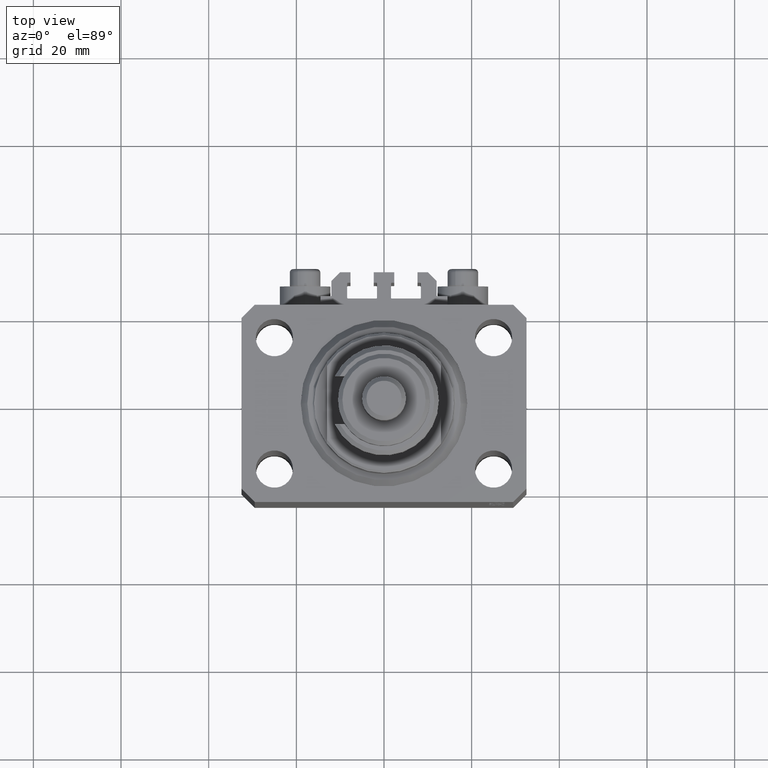
[diagram: clean part render]
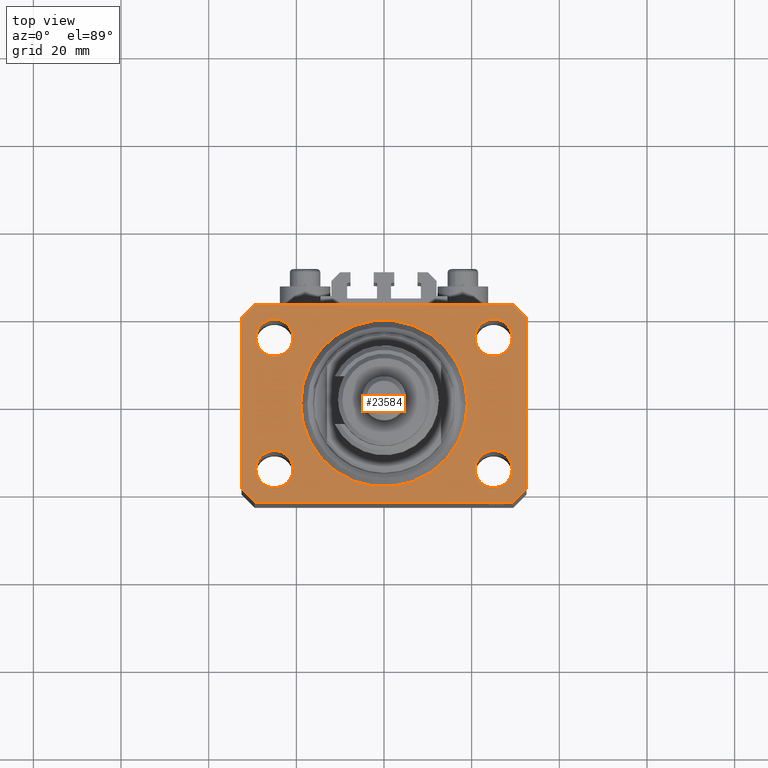
[diagram: same view with one face highlighted and labeled with its STEP entity id]
A machine part, top view. The second image highlights one B-rep face of the part: STEP entity #23584.
In plain terms, the highlighted planar face has unit normal (0, 0, 1).
Its self-contained STEP definition (entity closure, byte-faithful):
#23 = CARTESIAN_POINT ( 'NONE',  ( -32.49999999999650413, -19.49999999999949907, 0.000000000000000000 ) ) ;
#139 = EDGE_CURVE ( 'NONE', #29468, #21212, #16320, .T. ) ;
#364 = VERTEX_POINT ( 'NONE', #20429 ) ;
#382 = EDGE_CURVE ( 'NONE', #40312, #24815, #15598, .T. ) ;
#702 = VECTOR ( 'NONE', #46738, 1000.000000000000000 ) ;
#1671 = CARTESIAN_POINT ( 'NONE',  ( -29.25000000004036593, -15.00000000000000355, 0.000000000000000000 ) ) ;
#2043 = DIRECTION ( 'NONE',  ( 1.000000000000000000, 0.000000000000000000, 0.000000000000000000 ) ) ;
#2261 = AXIS2_PLACEMENT_3D ( 'NONE', #16899, #31892, #24784 ) ;
#2850 = ORIENTED_EDGE ( 'NONE', *, *, #47146, .T. ) ;
#3102 = ORIENTED_EDGE ( 'NONE', *, *, #8151, .F. ) ;
#3376 = ORIENTED_EDGE ( 'NONE', *, *, #36285, .T. ) ;
#3782 = EDGE_CURVE ( 'NONE', #14197, #40485, #9128, .T. ) ;
#4378 = EDGE_CURVE ( 'NONE', #40485, #14197, #8298, .T. ) ;
#4843 = FACE_BOUND ( 'NONE', #45336, .T. ) ;
#5138 = ORIENTED_EDGE ( 'NONE', *, *, #18514, .T. ) ;
#5512 = VERTEX_POINT ( 'NONE', #29041 ) ;
#5687 = DIRECTION ( 'NONE',  ( 1.000000000000000000, 0.000000000000000000, 0.000000000000000000 ) ) ;
#5704 = EDGE_LOOP ( 'NONE', ( #25010, #5138, #37946, #17575, #2850, #3376, #21161, #22762 ) ) ;
#5824 = DIRECTION ( 'NONE',  ( 1.000000000000000000, 0.000000000000000000, 0.000000000000000000 ) ) ;
#6728 = LINE ( 'NONE', #21964, #42340 ) ;
#7261 = CARTESIAN_POINT ( 'NONE',  ( -25.00000000000000000, 14.99999999999999645, 0.000000000000000000 ) ) ;
#7904 = DIRECTION ( 'NONE',  ( 0.000000000000000000, 0.000000000000000000, 1.000000000000000000 ) ) ;
#8139 = DIRECTION ( 'NONE',  ( 0.000000000000000000, 0.000000000000000000, 1.000000000000000000 ) ) ;
#8151 = EDGE_CURVE ( 'NONE', #26212, #44263, #29979, .T. ) ;
#8298 = CIRCLE ( 'NONE', #39938, 4.249999999976314058 ) ;
#8300 = VECTOR ( 'NONE', #23330, 1000.000000000000000 ) ;
#8932 = DIRECTION ( 'NONE',  ( 0.000000000000000000, 0.000000000000000000, 1.000000000000000000 ) ) ;
#8936 = ORIENTED_EDGE ( 'NONE', *, *, #382, .F. ) ;
#9128 = CIRCLE ( 'NONE', #17203, 4.249999999976314058 ) ;
#9972 = CARTESIAN_POINT ( 'NONE',  ( 0.000000000000000000, 0.000000000000000000, 0.000000000000000000 ) ) ;
#10463 = DIRECTION ( 'NONE',  ( 1.000000000000000000, 0.000000000000000000, 0.000000000000000000 ) ) ;
#10725 = DIRECTION ( 'NONE',  ( 0.000000000000000000, 0.000000000000000000, 1.000000000000000000 ) ) ;
#11119 = CARTESIAN_POINT ( 'NONE',  ( 20.75000000002367884, -15.00000000000000355, 0.000000000000000000 ) ) ;
#11658 = DIRECTION ( 'NONE',  ( 0.000000000000000000, 0.000000000000000000, 1.000000000000000000 ) ) ;
#12286 = ORIENTED_EDGE ( 'NONE', *, *, #139, .F. ) ;
#12449 = VECTOR ( 'NONE', #23437, 1000.000000000000114 ) ;
#12645 = ORIENTED_EDGE ( 'NONE', *, *, #35228, .F. ) ;
#12675 = EDGE_CURVE ( 'NONE', #45645, #14152, #34852, .T. ) ;
#12721 = FACE_BOUND ( 'NONE', #46117, .T. ) ;
#13235 = DIRECTION ( 'NONE',  ( 0.000000000000000000, 0.000000000000000000, 1.000000000000000000 ) ) ;
#13481 = FACE_BOUND ( 'NONE', #31452, .T. ) ;
#13750 = CARTESIAN_POINT ( 'NONE',  ( -29.25000000002137668, 14.99999999999999645, 0.000000000000000000 ) ) ;
#14045 = CARTESIAN_POINT ( 'NONE',  ( 32.49999999999702993, 19.49999999999945999, 0.000000000000000000 ) ) ;
#14152 = VERTEX_POINT ( 'NONE', #23292 ) ;
#14197 = VERTEX_POINT ( 'NONE', #15678 ) ;
#14609 = EDGE_CURVE ( 'NONE', #42518, #40184, #15751, .T. ) ;
#15266 = CIRCLE ( 'NONE', #2261, 4.249999999957291053 ) ;
#15497 = DIRECTION ( 'NONE',  ( -1.000000000000000000, -3.528251137580330676E-16, 0.000000000000000000 ) ) ;
#15598 = CIRCLE ( 'NONE', #18005, 19.00000000000000000 ) ;
#15678 = CARTESIAN_POINT ( 'NONE',  ( 29.24999999997631051, -15.00000000000000355, 0.000000000000000000 ) ) ;
#15751 = CIRCLE ( 'NONE', #44137, 4.250000000040370374 ) ;
#16320 = CIRCLE ( 'NONE', #17962, 4.250000000021375790 ) ;
#16379 = AXIS2_PLACEMENT_3D ( 'NONE', #9972, #10725, #10463 ) ;
#16899 = CARTESIAN_POINT ( 'NONE',  ( 25.00000000000000000, 14.99999999999999289, 0.000000000000000000 ) ) ;
#16920 = EDGE_LOOP ( 'NONE', ( #48616, #41250 ) ) ;
#17033 = CARTESIAN_POINT ( 'NONE',  ( -20.74999999997862687, 14.99999999999999645, 0.000000000000000000 ) ) ;
#17203 = AXIS2_PLACEMENT_3D ( 'NONE', #26343, #48960, #30140 ) ;
#17372 = DIRECTION ( 'NONE',  ( 0.000000000000000000, 0.000000000000000000, 1.000000000000000000 ) ) ;
#17575 = ORIENTED_EDGE ( 'NONE', *, *, #12675, .T. ) ;
#17962 = AXIS2_PLACEMENT_3D ( 'NONE', #7261, #41819, #41052 ) ;
#18005 = AXIS2_PLACEMENT_3D ( 'NONE', #47883, #17372, #5687 ) ;
#18514 = EDGE_CURVE ( 'NONE', #5512, #40753, #24137, .T. ) ;
#18590 = CARTESIAN_POINT ( 'NONE',  ( 32.49999999999651124, -19.49999999999949196, 0.000000000000000000 ) ) ;
#19441 = LINE ( 'NONE', #35433, #39903 ) ;
#19517 = CIRCLE ( 'NONE', #43902, 4.250000000021375790 ) ;
#19788 = LINE ( 'NONE', #24108, #702 ) ;
#19942 = DIRECTION ( 'NONE',  ( 0.7071067811865483499, 0.7071067811865466846, 0.000000000000000000 ) ) ;
#20069 = DIRECTION ( 'NONE',  ( 1.000000000000000000, 0.000000000000000000, 0.000000000000000000 ) ) ;
#20256 = CARTESIAN_POINT ( 'NONE',  ( 24.99999999999999289, -15.00000000000000355, 0.000000000000000000 ) ) ;
#20429 = CARTESIAN_POINT ( 'NONE',  ( 29.49999999999650413, -22.49999999999949196, 0.000000000000000000 ) ) ;
#20441 = ORIENTED_EDGE ( 'NONE', *, *, #36694, .F. ) ;
#20807 = VERTEX_POINT ( 'NONE', #37478 ) ;
#21161 = ORIENTED_EDGE ( 'NONE', *, *, #23354, .T. ) ;
#21212 = VERTEX_POINT ( 'NONE', #13750 ) ;
#21655 = LINE ( 'NONE', #18590, #50129 ) ;
#21964 = CARTESIAN_POINT ( 'NONE',  ( -29.49999999999650413, -22.49999999999949907, 0.000000000000000000 ) ) ;
#22762 = ORIENTED_EDGE ( 'NONE', *, *, #29737, .T. ) ;
#23292 = CARTESIAN_POINT ( 'NONE',  ( -29.49999999999650413, -22.49999999999949907, 0.000000000000000000 ) ) ;
#23330 = DIRECTION ( 'NONE',  ( 0.000000000000000000, -1.000000000000000000, 0.000000000000000000 ) ) ;
#23354 = EDGE_CURVE ( 'NONE', #20807, #28238, #21655, .T. ) ;
#23437 = DIRECTION ( 'NONE',  ( 0.7071067811865474617, -0.7071067811865474617, 0.000000000000000000 ) ) ;
#23584 = ADVANCED_FACE ( 'NONE', ( #40395, #13481, #32780, #4843, #12721, #40147 ), #48303, .T. ) ;
#24108 = CARTESIAN_POINT ( 'NONE',  ( 32.49999999999702993, 19.49999999999945999, 0.000000000000000000 ) ) ;
#24137 = LINE ( 'NONE', #32496, #41009 ) ;
#24784 = DIRECTION ( 'NONE',  ( 1.000000000000000000, 0.000000000000000000, 0.000000000000000000 ) ) ;
#24815 = VERTEX_POINT ( 'NONE', #36489 ) ;
#25010 = ORIENTED_EDGE ( 'NONE', *, *, #41893, .T. ) ;
#25534 = ORIENTED_EDGE ( 'NONE', *, *, #27788, .F. ) ;
#26212 = VERTEX_POINT ( 'NONE', #36938 ) ;
#26343 = CARTESIAN_POINT ( 'NONE',  ( 24.99999999999999289, -15.00000000000000355, 0.000000000000000000 ) ) ;
#26447 = CARTESIAN_POINT ( 'NONE',  ( 29.49999999999707967, 22.49999999999952038, 0.000000000000000000 ) ) ;
#27158 = DIRECTION ( 'NONE',  ( 1.000000000000000000, 0.000000000000000000, 0.000000000000000000 ) ) ;
#27788 = EDGE_CURVE ( 'NONE', #44263, #26212, #15266, .T. ) ;
#28238 = VERTEX_POINT ( 'NONE', #14045 ) ;
#28329 = CARTESIAN_POINT ( 'NONE',  ( 20.75000000004271072, 14.99999999999999289, 0.000000000000000000 ) ) ;
#29041 = CARTESIAN_POINT ( 'NONE',  ( -29.49999999999650413, 22.49999999999949907, 0.000000000000000000 ) ) ;
#29468 = VERTEX_POINT ( 'NONE', #17033 ) ;
#29737 = EDGE_CURVE ( 'NONE', #28238, #40547, #19788, .T. ) ;
#29979 = CIRCLE ( 'NONE', #36447, 4.249999999957291053 ) ;
#30140 = DIRECTION ( 'NONE',  ( 1.000000000000000000, 0.000000000000000000, 0.000000000000000000 ) ) ;
#31065 = CIRCLE ( 'NONE', #31849, 4.250000000040370374 ) ;
#31452 = EDGE_LOOP ( 'NONE', ( #42811, #41683 ) ) ;
#31636 = CARTESIAN_POINT ( 'NONE',  ( 29.49999999999707967, 22.49999999999952038, 0.000000000000000000 ) ) ;
#31849 = AXIS2_PLACEMENT_3D ( 'NONE', #42712, #7904, #20069 ) ;
#31892 = DIRECTION ( 'NONE',  ( 0.000000000000000000, 0.000000000000000000, 1.000000000000000000 ) ) ;
#32429 = DIRECTION ( 'NONE',  ( 1.000000000000000000, 0.000000000000000000, 0.000000000000000000 ) ) ;
#32496 = CARTESIAN_POINT ( 'NONE',  ( -29.49999999999650413, 22.49999999999949907, 0.000000000000000000 ) ) ;
#32780 = FACE_BOUND ( 'NONE', #16920, .T. ) ;
#33495 = CARTESIAN_POINT ( 'NONE',  ( -25.00000000000000000, 14.99999999999999645, 0.000000000000000000 ) ) ;
#33879 = EDGE_LOOP ( 'NONE', ( #8936, #20441 ) ) ;
#34509 = CARTESIAN_POINT ( 'NONE',  ( -32.49999999999650413, 19.49999999999949907, 0.000000000000000000 ) ) ;
#34852 = LINE ( 'NONE', #40114, #12449 ) ;
#35004 = LINE ( 'NONE', #34509, #8300 ) ;
#35043 = CIRCLE ( 'NONE', #16379, 19.00000000000000000 ) ;
#35228 = EDGE_CURVE ( 'NONE', #21212, #29468, #19517, .T. ) ;
#35433 = CARTESIAN_POINT ( 'NONE',  ( 29.49999999999650413, -22.49999999999949196, 0.000000000000000000 ) ) ;
#35822 = DIRECTION ( 'NONE',  ( 1.000000000000000000, 0.000000000000000000, -0.000000000000000000 ) ) ;
#36285 = EDGE_CURVE ( 'NONE', #364, #20807, #19441, .T. ) ;
#36447 = AXIS2_PLACEMENT_3D ( 'NONE', #43870, #8139, #32429 ) ;
#36489 = CARTESIAN_POINT ( 'NONE',  ( -19.00000000000000000, 2.326828918379970970E-15, 0.000000000000000000 ) ) ;
#36694 = EDGE_CURVE ( 'NONE', #24815, #40312, #35043, .T. ) ;
#36938 = CARTESIAN_POINT ( 'NONE',  ( 29.24999999995729283, 14.99999999999999289, 0.000000000000000000 ) ) ;
#37155 = AXIS2_PLACEMENT_3D ( 'NONE', #48045, #13235, #35822 ) ;
#37202 = DIRECTION ( 'NONE',  ( 1.000000000000000000, 1.176083712526788232E-16, 0.000000000000000000 ) ) ;
#37478 = CARTESIAN_POINT ( 'NONE',  ( 32.49999999999651124, -19.49999999999949196, 0.000000000000000000 ) ) ;
#37946 = ORIENTED_EDGE ( 'NONE', *, *, #38267, .T. ) ;
#38267 = EDGE_CURVE ( 'NONE', #40753, #45645, #35004, .T. ) ;
#39017 = EDGE_CURVE ( 'NONE', #40184, #42518, #31065, .T. ) ;
#39637 = CARTESIAN_POINT ( 'NONE',  ( 19.00000000000000000, 0.000000000000000000, 0.000000000000000000 ) ) ;
#39903 = VECTOR ( 'NONE', #19942, 1000.000000000000000 ) ;
#39938 = AXIS2_PLACEMENT_3D ( 'NONE', #20256, #11658, #27158 ) ;
#40114 = CARTESIAN_POINT ( 'NONE',  ( -32.49999999999650413, -19.49999999999949907, 0.000000000000000000 ) ) ;
#40147 = FACE_OUTER_BOUND ( 'NONE', #5704, .T. ) ;
#40184 = VERTEX_POINT ( 'NONE', #50104 ) ;
#40312 = VERTEX_POINT ( 'NONE', #39637 ) ;
#40395 = FACE_BOUND ( 'NONE', #33879, .T. ) ;
#40485 = VERTEX_POINT ( 'NONE', #11119 ) ;
#40547 = VERTEX_POINT ( 'NONE', #31636 ) ;
#40753 = VERTEX_POINT ( 'NONE', #45343 ) ;
#41009 = VECTOR ( 'NONE', #47264, 1000.000000000000114 ) ;
#41052 = DIRECTION ( 'NONE',  ( 1.000000000000000000, 0.000000000000000000, 0.000000000000000000 ) ) ;
#41250 = ORIENTED_EDGE ( 'NONE', *, *, #4378, .F. ) ;
#41683 = ORIENTED_EDGE ( 'NONE', *, *, #14609, .F. ) ;
#41819 = DIRECTION ( 'NONE',  ( 0.000000000000000000, 0.000000000000000000, 1.000000000000000000 ) ) ;
#41893 = EDGE_CURVE ( 'NONE', #40547, #5512, #42682, .T. ) ;
#41972 = DIRECTION ( 'NONE',  ( 1.334402673828349134E-14, 1.000000000000000000, 0.000000000000000000 ) ) ;
#42340 = VECTOR ( 'NONE', #37202, 1000.000000000000000 ) ;
#42518 = VERTEX_POINT ( 'NONE', #1671 ) ;
#42682 = LINE ( 'NONE', #26447, #48808 ) ;
#42712 = CARTESIAN_POINT ( 'NONE',  ( -24.99999999999999289, -15.00000000000000355, 0.000000000000000000 ) ) ;
#42811 = ORIENTED_EDGE ( 'NONE', *, *, #39017, .F. ) ;
#43870 = CARTESIAN_POINT ( 'NONE',  ( 25.00000000000000000, 14.99999999999999289, 0.000000000000000000 ) ) ;
#43902 = AXIS2_PLACEMENT_3D ( 'NONE', #33495, #48763, #5824 ) ;
#44137 = AXIS2_PLACEMENT_3D ( 'NONE', #47552, #8932, #2043 ) ;
#44263 = VERTEX_POINT ( 'NONE', #28329 ) ;
#45336 = EDGE_LOOP ( 'NONE', ( #3102, #25534 ) ) ;
#45343 = CARTESIAN_POINT ( 'NONE',  ( -32.49999999999650413, 19.49999999999949907, 0.000000000000000000 ) ) ;
#45645 = VERTEX_POINT ( 'NONE', #23 ) ;
#46117 = EDGE_LOOP ( 'NONE', ( #12286, #12645 ) ) ;
#46738 = DIRECTION ( 'NONE',  ( -0.7071067811865344721, 0.7071067811865606734, 0.000000000000000000 ) ) ;
#47146 = EDGE_CURVE ( 'NONE', #14152, #364, #6728, .T. ) ;
#47264 = DIRECTION ( 'NONE',  ( -0.7071067811865474617, -0.7071067811865474617, 0.000000000000000000 ) ) ;
#47552 = CARTESIAN_POINT ( 'NONE',  ( -24.99999999999999289, -15.00000000000000355, 0.000000000000000000 ) ) ;
#47883 = CARTESIAN_POINT ( 'NONE',  ( 0.000000000000000000, 0.000000000000000000, 0.000000000000000000 ) ) ;
#48045 = CARTESIAN_POINT ( 'NONE',  ( 0.000000000000000000, 0.000000000000000000, 0.000000000000000000 ) ) ;
#48303 = PLANE ( 'NONE',  #37155 ) ;
#48616 = ORIENTED_EDGE ( 'NONE', *, *, #3782, .F. ) ;
#48763 = DIRECTION ( 'NONE',  ( 0.000000000000000000, 0.000000000000000000, 1.000000000000000000 ) ) ;
#48808 = VECTOR ( 'NONE', #15497, 1000.000000000000000 ) ;
#48960 = DIRECTION ( 'NONE',  ( 0.000000000000000000, 0.000000000000000000, 1.000000000000000000 ) ) ;
#50104 = CARTESIAN_POINT ( 'NONE',  ( -20.74999999995962341, -15.00000000000000355, 0.000000000000000000 ) ) ;
#50129 = VECTOR ( 'NONE', #41972, 1000.000000000000000 ) ;